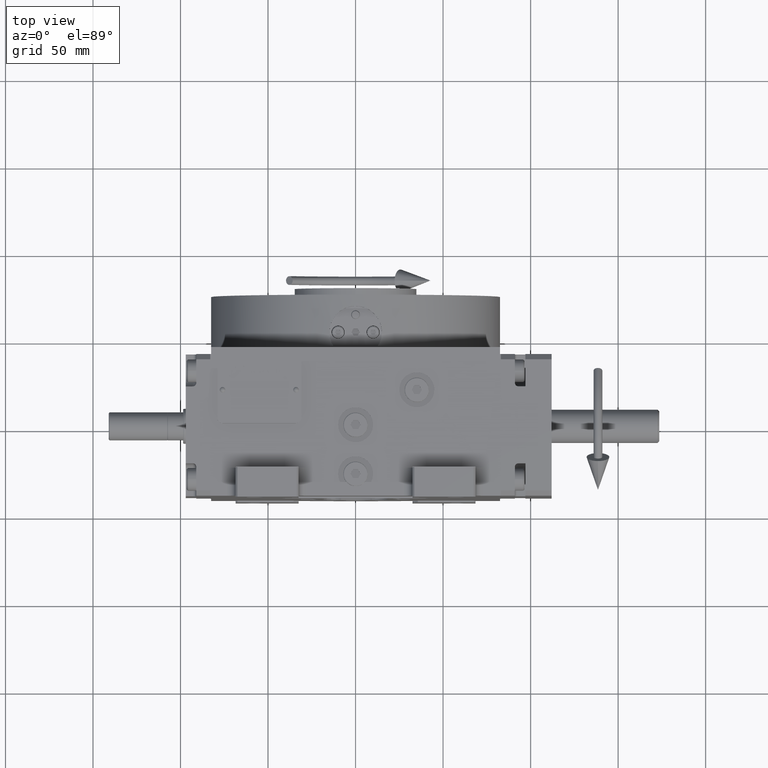
[diagram: clean part render]
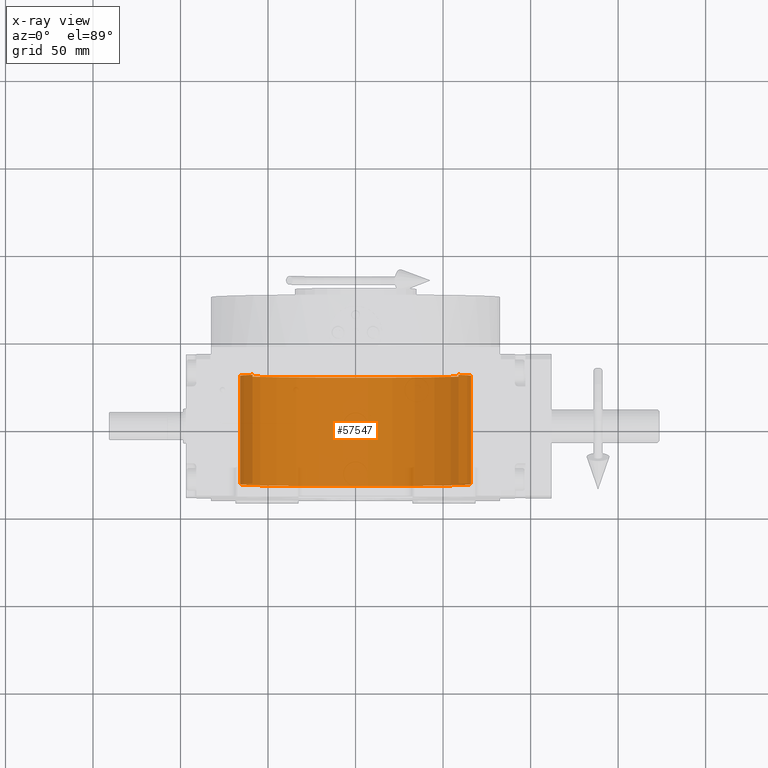
[diagram: x-ray — body ghosted, one internal face saturated and labeled with its STEP entity id]
A machine part, top view, then the same camera in x-ray: the body is ghosted and one INTERNAL B-rep face — a face not visible from any outside direction — is saturated and labeled: STEP entity #57547.
In plain terms, the highlighted cylindrical surface (partial cylindrical patch) has radius 66 mm, axis along (0, 1, 0).
Its self-contained STEP definition (entity closure, byte-faithful):
#465 = DIRECTION ( 'NONE',  ( -0.000000000000000000, 1.000000000000000000, -0.000000000000000000 ) ) ;
#2864 = EDGE_CURVE ( 'NONE', #20293, #59092, #20849, .T. ) ;
#3233 = DIRECTION ( 'NONE',  ( -0.000000000000000000, 1.000000000000000000, -0.000000000000000000 ) ) ;
#3973 = DIRECTION ( 'NONE',  ( -0.000000000000000000, 1.000000000000000000, -0.000000000000000000 ) ) ;
#8202 = CIRCLE ( 'NONE', #18756, 66.00000000000000000 ) ;
#9601 = DIRECTION ( 'NONE',  ( 0.000000000000000000, -1.000000000000000000, 0.000000000000000000 ) ) ;
#9865 = DIRECTION ( 'NONE',  ( 0.000000000000000000, 0.000000000000000000, 1.000000000000000000 ) ) ;
#10585 = CYLINDRICAL_SURFACE ( 'NONE', #27121, 66.00000000000000000 ) ;
#11279 = ORIENTED_EDGE ( 'NONE', *, *, #46378, .T. ) ;
#15715 = DIRECTION ( 'NONE',  ( -0.000000000000000000, 1.000000000000000000, -0.000000000000000000 ) ) ;
#16449 = CARTESIAN_POINT ( 'NONE',  ( 58.78775382679628336, 98.15000000000000568, 30.00000000000000000 ) ) ;
#16498 = CARTESIAN_POINT ( 'NONE',  ( -58.78775382679628336, -31.99999999999998579, 30.00000000000000000 ) ) ;
#18756 = AXIS2_PLACEMENT_3D ( 'NONE', #59343, #3233, #71043 ) ;
#19386 = ORIENTED_EDGE ( 'NONE', *, *, #67811, .F. ) ;
#20293 = VERTEX_POINT ( 'NONE', #57492 ) ;
#20849 = LINE ( 'NONE', #16449, #57328 ) ;
#22259 = AXIS2_PLACEMENT_3D ( 'NONE', #33144, #465, #23203 ) ;
#23203 = DIRECTION ( 'NONE',  ( 0.000000000000000000, 0.000000000000000000, 1.000000000000000000 ) ) ;
#27121 = AXIS2_PLACEMENT_3D ( 'NONE', #72150, #15715, #9865 ) ;
#28656 = EDGE_LOOP ( 'NONE', ( #45474, #19386, #48823, #11279 ) ) ;
#32136 = EDGE_CURVE ( 'NONE', #32158, #66115, #60184, .T. ) ;
#32158 = VERTEX_POINT ( 'NONE', #32316 ) ;
#32316 = CARTESIAN_POINT ( 'NONE',  ( -58.78775382679628336, 30.00000000000001421, 30.00000000000000000 ) ) ;
#33144 = CARTESIAN_POINT ( 'NONE',  ( 0.000000000000000000, 30.00000000000001421, 0.000000000000000000 ) ) ;
#37834 = CARTESIAN_POINT ( 'NONE',  ( -58.78775382679628336, 98.15000000000000568, 30.00000000000000000 ) ) ;
#39366 = VECTOR ( 'NONE', #9601, 1000.000000000000000 ) ;
#45474 = ORIENTED_EDGE ( 'NONE', *, *, #32136, .T. ) ;
#46378 = EDGE_CURVE ( 'NONE', #59092, #32158, #52751, .T. ) ;
#48823 = ORIENTED_EDGE ( 'NONE', *, *, #2864, .T. ) ;
#52751 = CIRCLE ( 'NONE', #22259, 66.00000000000000000 ) ;
#57328 = VECTOR ( 'NONE', #3973, 1000.000000000000000 ) ;
#57492 = CARTESIAN_POINT ( 'NONE',  ( 58.78775382679628336, -31.99999999999998579, 30.00000000000000000 ) ) ;
#57547 = ADVANCED_FACE ( 'NONE', ( #60084 ), #10585, .F. ) ;
#59092 = VERTEX_POINT ( 'NONE', #64425 ) ;
#59343 = CARTESIAN_POINT ( 'NONE',  ( 0.000000000000000000, -31.99999999999998579, 0.000000000000000000 ) ) ;
#60084 = FACE_OUTER_BOUND ( 'NONE', #28656, .T. ) ;
#60184 = LINE ( 'NONE', #37834, #39366 ) ;
#64425 = CARTESIAN_POINT ( 'NONE',  ( 58.78775382679628336, 30.00000000000001421, 30.00000000000000000 ) ) ;
#66115 = VERTEX_POINT ( 'NONE', #16498 ) ;
#67811 = EDGE_CURVE ( 'NONE', #20293, #66115, #8202, .T. ) ;
#71043 = DIRECTION ( 'NONE',  ( 0.000000000000000000, 0.000000000000000000, 1.000000000000000000 ) ) ;
#72150 = CARTESIAN_POINT ( 'NONE',  ( 0.000000000000000000, 98.15000000000000568, 0.000000000000000000 ) ) ;